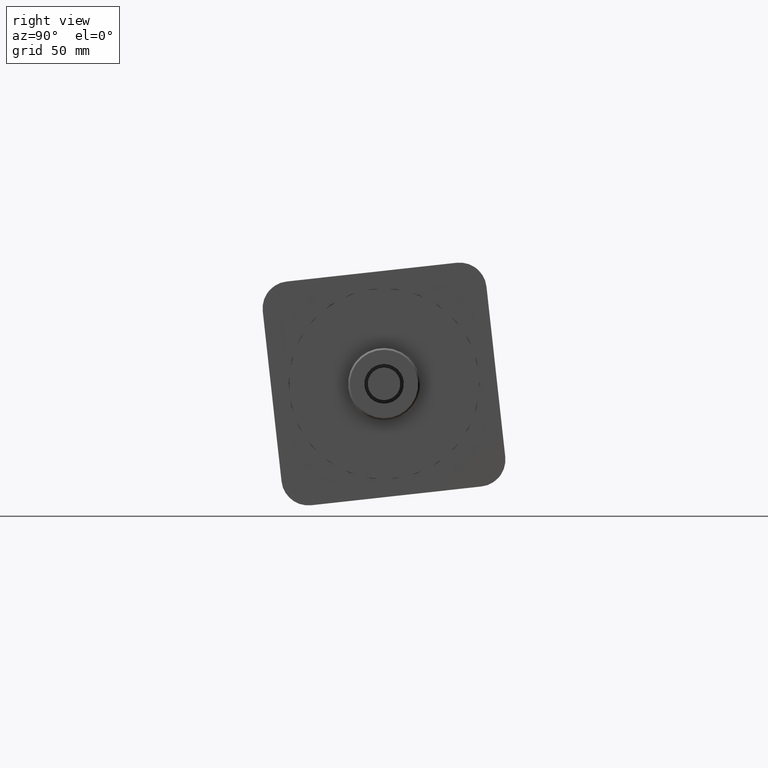
[diagram: clean part render]
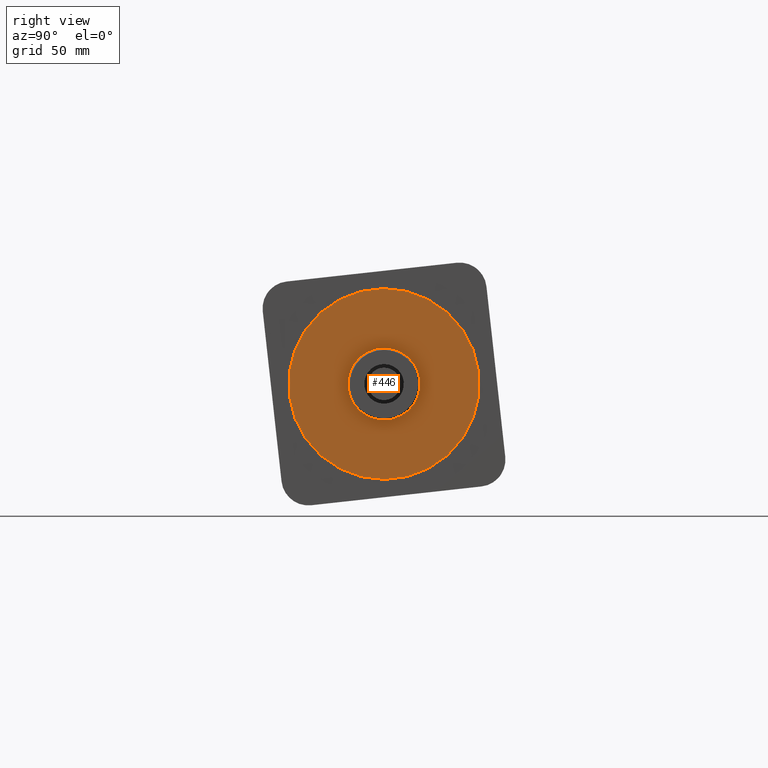
[diagram: same view with one face highlighted and labeled with its STEP entity id]
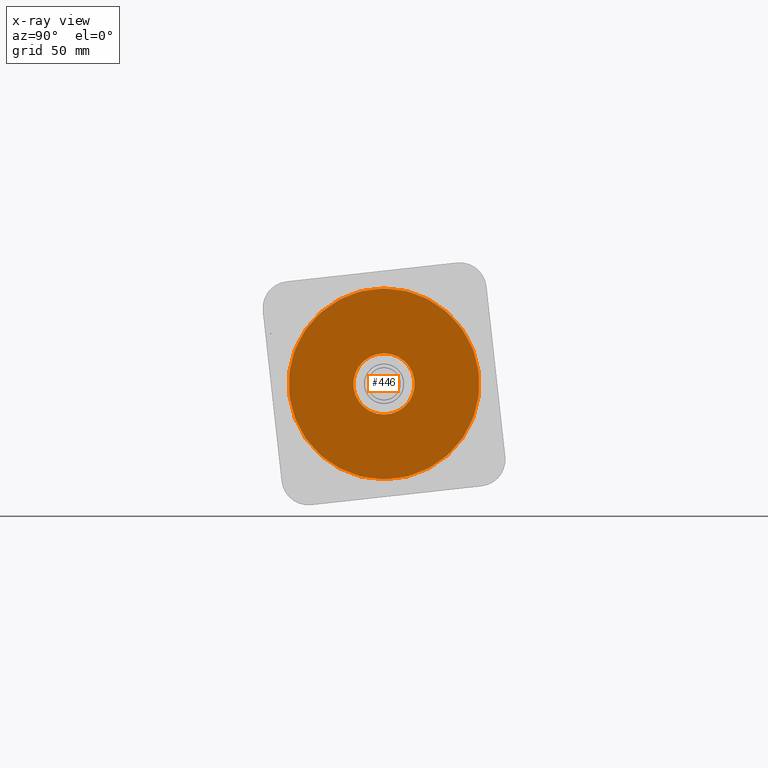
[diagram: x-ray of the same camera — body ghosted, the highlighted face saturated]
A machine part, right view. The second image highlights one B-rep face of the part: STEP entity #446.
The next image is the same camera in x-ray: the body ghosted, the highlighted face saturated — about 0% of this face is hidden behind the body in this view.
In plain terms, the highlighted planar face has unit normal (-1, 0, 0).
Its self-contained STEP definition (entity closure, byte-faithful):
#446 = ADVANCED_FACE ( 'NONE', ( #26099, #3401 ), #36476, .F. ) ;
#2837 = AXIS2_PLACEMENT_3D ( 'NONE', #7029, #14533, #18619 ) ;
#3401 = FACE_OUTER_BOUND ( 'NONE', #16827, .T. ) ;
#3622 = CIRCLE ( 'NONE', #22142, 16.99999999999988631 ) ;
#7029 = CARTESIAN_POINT ( 'NONE',  ( 6.814291791235022266, 16.99998570895540340, 0.02204303307789282074 ) ) ;
#12371 = EDGE_CURVE ( 'NONE', #24439, #24439, #44923, .T. ) ;
#13269 = DIRECTION ( 'NONE',  ( 1.000000000000000000, -0.000000000000000000, 0.000000000000000000 ) ) ;
#14026 = CARTESIAN_POINT ( 'NONE',  ( 6.814291791235022266, -2.505699976877714091E-14, -2.340416494503755723E-15 ) ) ;
#14533 = DIRECTION ( 'NONE',  ( -1.000000000000000000, 0.000000000000000000, 0.000000000000000000 ) ) ;
#16827 = EDGE_LOOP ( 'NONE', ( #20037 ) ) ;
#16899 = DIRECTION ( 'NONE',  ( 0.000000000000000000, -0.001296649004582077101, 0.9999991593503260168 ) ) ;
#18619 = DIRECTION ( 'NONE',  ( 0.000000000000000000, -0.001296649004582077101, 0.9999991593503260168 ) ) ;
#20037 = ORIENTED_EDGE ( 'NONE', *, *, #12371, .F. ) ;
#22142 = AXIS2_PLACEMENT_3D ( 'NONE', #42971, #13269, #16899 ) ;
#22712 = VERTEX_POINT ( 'NONE', #42025 ) ;
#23931 = ORIENTED_EDGE ( 'NONE', *, *, #25812, .F. ) ;
#24439 = VERTEX_POINT ( 'NONE', #35516 ) ;
#25812 = EDGE_CURVE ( 'NONE', #22712, #22712, #3622, .T. ) ;
#26099 = FACE_BOUND ( 'NONE', #26433, .T. ) ;
#26433 = EDGE_LOOP ( 'NONE', ( #23931 ) ) ;
#35516 = CARTESIAN_POINT ( 'NONE',  ( 6.814291791235022266, -0.06872239724287515505, 52.99995544556729499 ) ) ;
#36476 = PLANE ( 'NONE',  #2837 ) ;
#38903 = DIRECTION ( 'NONE',  ( -1.000000000000000000, 0.000000000000000000, -0.000000000000000000 ) ) ;
#42025 = CARTESIAN_POINT ( 'NONE',  ( 6.814291791235022266, -0.02204303307792021896, 16.99998570895542471 ) ) ;
#42629 = AXIS2_PLACEMENT_3D ( 'NONE', #14026, #38903, #46389 ) ;
#42971 = CARTESIAN_POINT ( 'NONE',  ( 6.814291791235022266, -2.505699976877714091E-14, -2.340416494503755723E-15 ) ) ;
#44923 = CIRCLE ( 'NONE', #42629, 53.00000000000001421 ) ;
#46389 = DIRECTION ( 'NONE',  ( 0.000000000000000000, -0.001296649004582077101, 0.9999991593503260168 ) ) ;